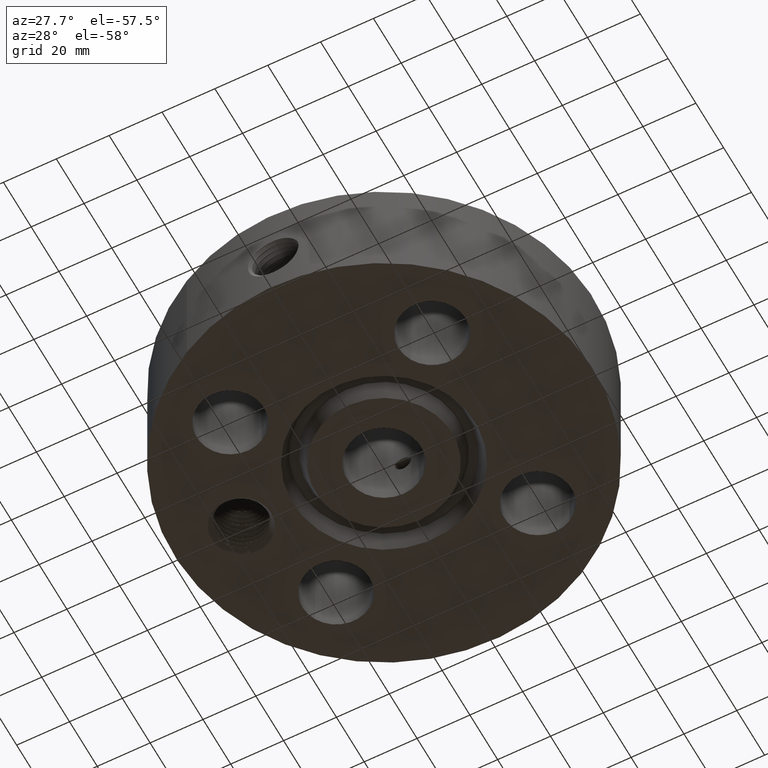
[diagram: clean part render]
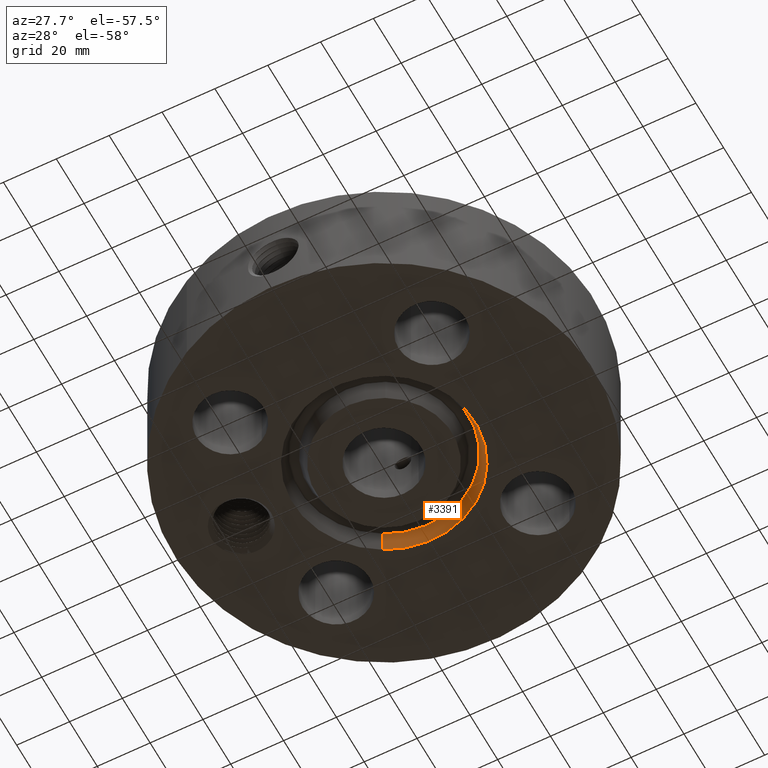
[diagram: same view with one face highlighted and labeled with its STEP entity id]
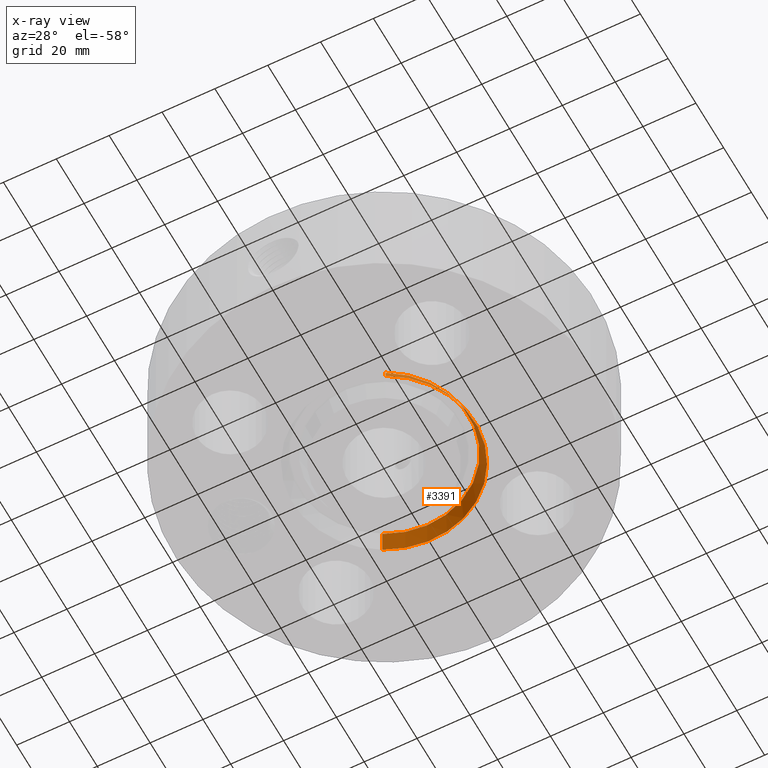
[diagram: x-ray of the same camera — body ghosted, the highlighted face saturated]
A machine part, auxiliary view. The second image highlights one B-rep face of the part: STEP entity #3391.
The next image is the same camera in x-ray: the body ghosted, the highlighted face saturated — about 0% of this face is hidden behind the body in this view.
In plain terms, the highlighted conical surface has half-angle 23 deg.
Its self-contained STEP definition (entity closure, byte-faithful):
#2609=AXIS2_PLACEMENT_3D('Circle Axis2P3D',#2607,#2608,$) ;
#3364=AXIS2_PLACEMENT_3D('Cone Axis2P3D',#3361,#3362,#3363) ;
#3368=AXIS2_PLACEMENT_3D('Circle Axis2P3D',#3366,#3367,$) ;
#2607=CARTESIAN_POINT('Axis2P3D Location',(0.,0.,0.231721933856)) ;
#2611=CARTESIAN_POINT('Vertex',(0.604622663693,-1.10675436216,0.231721933856)) ;
#2613=CARTESIAN_POINT('Vertex',(-0.604622663693,1.10675436216,0.231721933856)) ;
#3361=CARTESIAN_POINT('Axis2P3D Location',(0.,0.,0.231721933856)) ;
#3366=CARTESIAN_POINT('Axis2P3D Location',(0.,0.,0.)) ;
#3370=CARTESIAN_POINT('Vertex',(-0.651779019735,1.19307349289,0.)) ;
#3372=CARTESIAN_POINT('Vertex',(0.651779019735,-1.19307349289,0.)) ;
#3375=CARTESIAN_POINT('Line Origine',(0.628200841714,-1.14991392753,0.115860966928)) ;
#3380=CARTESIAN_POINT('Line Origine',(-0.628200841714,1.14991392753,0.115860966928)) ;
#2608=DIRECTION('Axis2P3D Direction',(0.,0.,0.0393700787402)) ;
#3362=DIRECTION('Axis2P3D Direction',(-0.,-0.,-0.0393700787402)) ;
#3363=DIRECTION('Axis2P3D XDirection',(0.0188750212049,-0.0345504945626,0.)) ;
#3367=DIRECTION('Axis2P3D Direction',(0.,0.,-0.0393700787402)) ;
#3376=DIRECTION('Vector Direction',(0.00737505833565,-0.0134999537303,-0.0362403485611)) ;
#3381=DIRECTION('Vector Direction',(-0.00737505833565,0.0134999537303,-0.0362403485611)) ;
#3377=VECTOR('Line Direction',#3376,0.0393700787402) ;
#3382=VECTOR('Line Direction',#3381,0.0393700787402) ;
#3386=ORIENTED_EDGE('',*,*,#3374,.T.) ;
#3387=ORIENTED_EDGE('',*,*,#3379,.T.) ;
#3388=ORIENTED_EDGE('',*,*,#2615,.T.) ;
#3389=ORIENTED_EDGE('',*,*,#3384,.F.) ;
#3391=ADVANCED_FACE('PartBody',(#3390),#3365,.F.) ;
#2610=CIRCLE('generated circle',#2609,1.26113987472) ;
#3369=CIRCLE('generated circle',#3368,1.35950000001) ;
#3365=CONICAL_SURFACE('Cone',#3364,1.26113987472,0.401425727959) ;
#2615=EDGE_CURVE('',#2612,#2614,#2610,.T.) ;
#3374=EDGE_CURVE('',#3371,#3373,#3369,.T.) ;
#3379=EDGE_CURVE('',#3373,#2612,#3378,.F.) ;
#3384=EDGE_CURVE('',#3371,#2614,#3383,.F.) ;
#3385=EDGE_LOOP('',(#3386,#3387,#3388,#3389)) ;
#3390=FACE_OUTER_BOUND('',#3385,.T.) ;
#3378=LINE('Line',#3375,#3377) ;
#3383=LINE('Line',#3380,#3382) ;
#2612=VERTEX_POINT('',#2611) ;
#2614=VERTEX_POINT('',#2613) ;
#3371=VERTEX_POINT('',#3370) ;
#3373=VERTEX_POINT('',#3372) ;